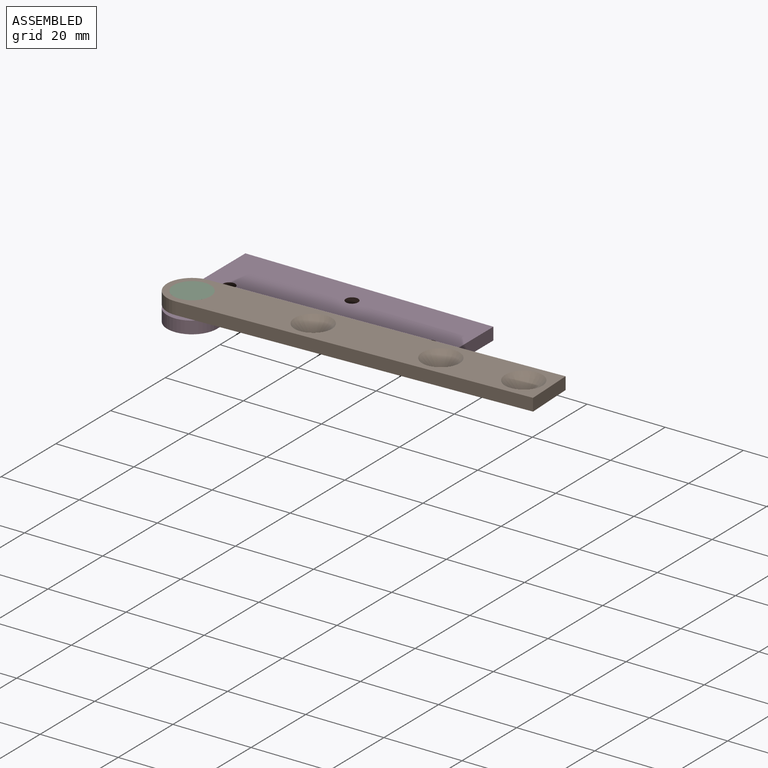
[diagram: assembled view]
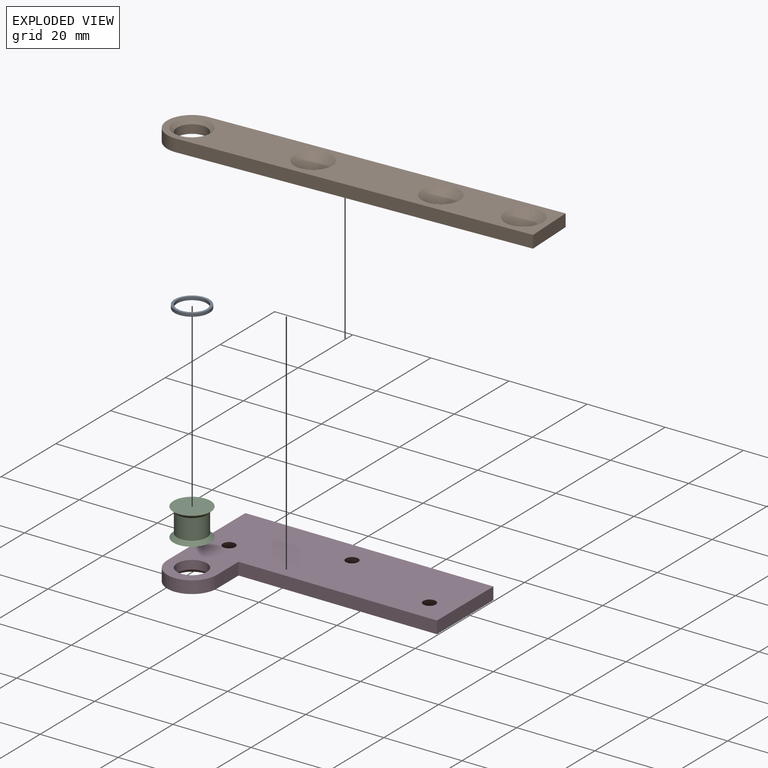
[diagram: exploded view]
GUIDED TOUR — MATED ASSEMBLY (Onshape document 0c7a436c01c78cbce4752ac5, AutoMate assembly 0c7a436c01c78cbce4752ac5_e4ef03f2356cd736030fd35d_e8e0e9ee72d660aeccb59630_default)

This assembly has 4 components, labeled P0..P3 below (a component is one placed occurrence of a part; the same part can appear more than once), held together by 6 mates. A mate is a constraint between two components; its type names the relative motion it leaves free:
  PLANAR — leaves sliding in the plane through the listed point (normal = the listed direction) and rotation about that normal free,
  REVOLUTE — leaves rotation about the listed axis free (a hinge).
Axis/direction vectors are unit vectors and 'through' points are millimeter coordinates, both in the assembly's world frame.

MATES
  1. REVOLUTE "Revolute 2": P1 <-> P0, axis (0.000, 0.000, -1.000) through (-55.55, -22.24, 11.81) mm
  2. REVOLUTE "Revolute 3": P2 <-> P1, axis (0.000, 0.000, 1.000) through (-55.55, -22.24, 14.98) mm
  3. PLANAR "Planar 2": P1 <-> P0, direction (0.000, 0.000, -1.000) through (-55.55, -22.24, 11.81) mm
  4. REVOLUTE "Revolute 1": P0 <-> P3, axis (0.000, 0.000, -1.000) through (-55.55, -22.24, 11.02) mm
  5. PLANAR "Planar 3": P1 <-> P2, direction (0.000, 0.000, 1.000) through (-14.18, -20.47, 14.98) mm
  6. PLANAR "Planar 1": P3 <-> P0, direction (0.000, 0.000, 1.000) through (-32.30, -5.33, 11.02) mm

ASSEMBLY ORDER
  1. P0 — the base component [order heuristic]
  2. P1 [order heuristic]
  3. P3 [order heuristic]
  4. P2 [order heuristic]
Order-tag legend:
  [order heuristic] — this assembly is geometrically interlocked (no collision-free removal order exists), so components are listed in mate-graph order; insertion feasibility is not verified.

Of the 4 components, 4 carry the full construction recipe — the FeatureScript program that regenerates the part's solid from scratch; the rest are supplied as boundary geometry only.
Each toured component is shown spotlighted twice — in the assembled view, then in the exploded view, where a leader line traces a displaced component back to its assembled socket (saturated green if recipe-attached, orange if geometry-only; every other component desaturated gray) — followed by its recipe or geometry summary and the mates that hold it.
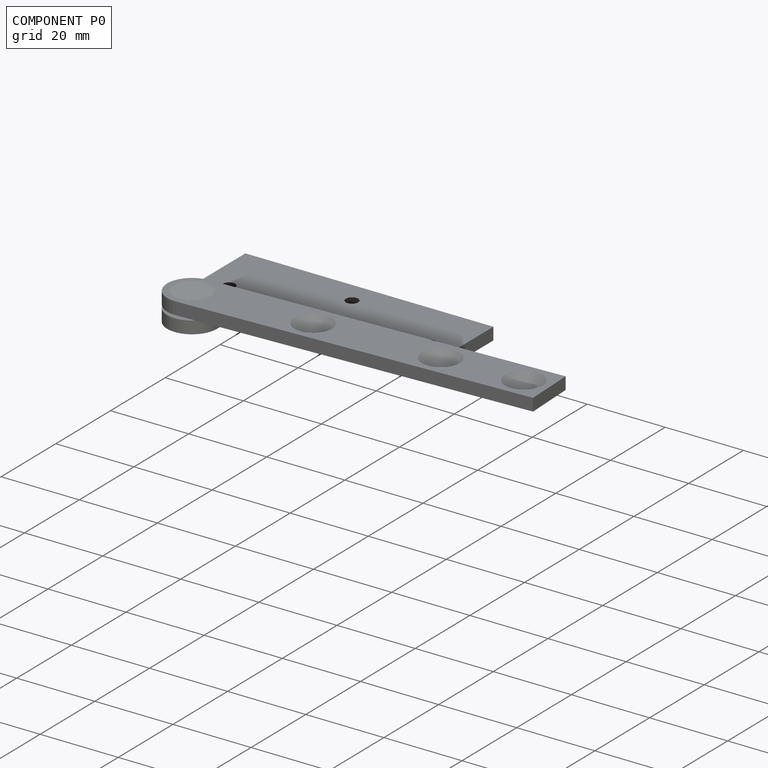
[diagram: component P0 — assembled]
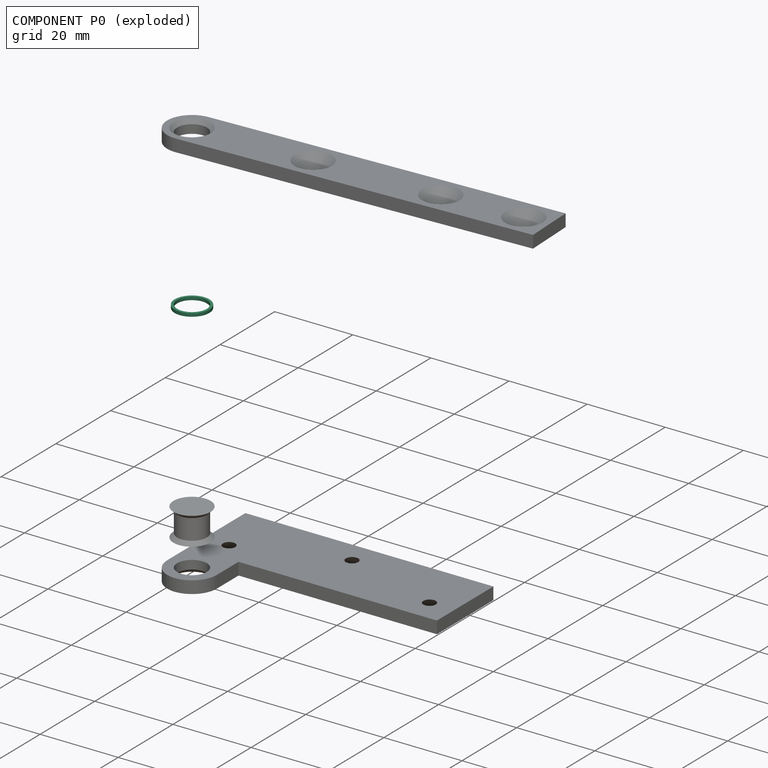
[diagram: component P0 — exploded]
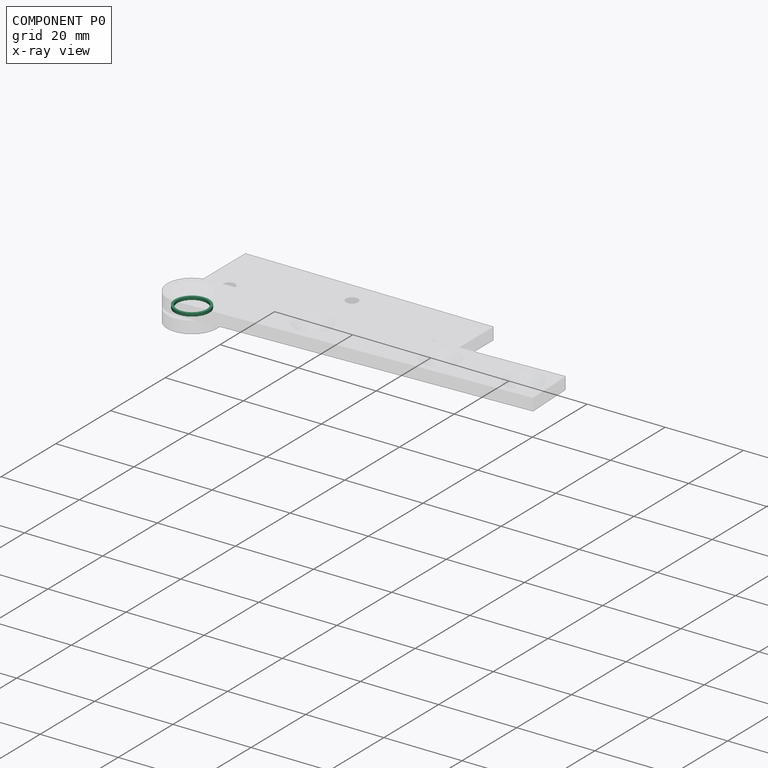
[diagram: component P0 — x-ray view]
COMPONENT P0 — recipe-attached (CADFS 00635773, mesh-verified: the recipe's output STEP matches this component's geometry to below the mesh-comparison resolution (tessellation chordal tolerance ~0.0189 mm)).
Held by: REVOLUTE mate "Revolute 2" to P1; PLANAR mate "Planar 2" to P1; REVOLUTE mate "Revolute 1" to P3; PLANAR mate "Planar 1" to P3.
Construction recipe (FeatureScript — the CAD program that rebuilds this solid; sketch coordinates are in the units given by the * unit suffixes, e.g. mm):

FeatureScript 1511;
import(path : "onshape/std/geometry.fs", version : "1511.0");
import(path : "onshape/std/common.fs", version : "1511.0");
const mm = millimeter;
const VERTEX = EntityType.VERTEX;
const EDGE = EntityType.EDGE;
const FACE = EntityType.FACE;
const BODY = EntityType.BODY;
function v(x, y){return vector(x, y);}
function OD(order){return orderDisambiguation(order);}
function OSD(set){return originalSetDisambiguation(set);}
function TD(topology){return topologyDisambiguation(topology);}
function TDD(query){return trueDependencyDisambiguation(query);}
function sQuery(a, b, c) {return sketchEntityQuery(a, b, c);}

annotation { "Feature Type Name" : "Feature", "Feature Type Description" : "" }
export const myFeature = defineFeature(function(context is Context, id is Id, definition is map)
    precondition{}
    {
        {
            var Q0;
            Q0=qCreatedBy(makeId("Front.planeOp"),FACE);
            var sketch = newSketch(context, id + "F0", { "sketchPlane" : qUnion([Q0])});
            skCircle(sketch, "E0", {"center": v(0, 0) * mm, "radius": 3.81 * mm});
            skCircle(sketch, "E1", {"center": v(0, 0) * mm, "radius": 4.45 * mm});
            skSolve(sketch);
        }
        {
            var Q0;
            Q0 = qSketchRegion(id + "F0", true);
            extrude(context, id + "F1", {"entities" : qUnion([Q0]), "depth" : 0.8 * mm, "offsetDistance" : 25.4 * mm});
        }
    });
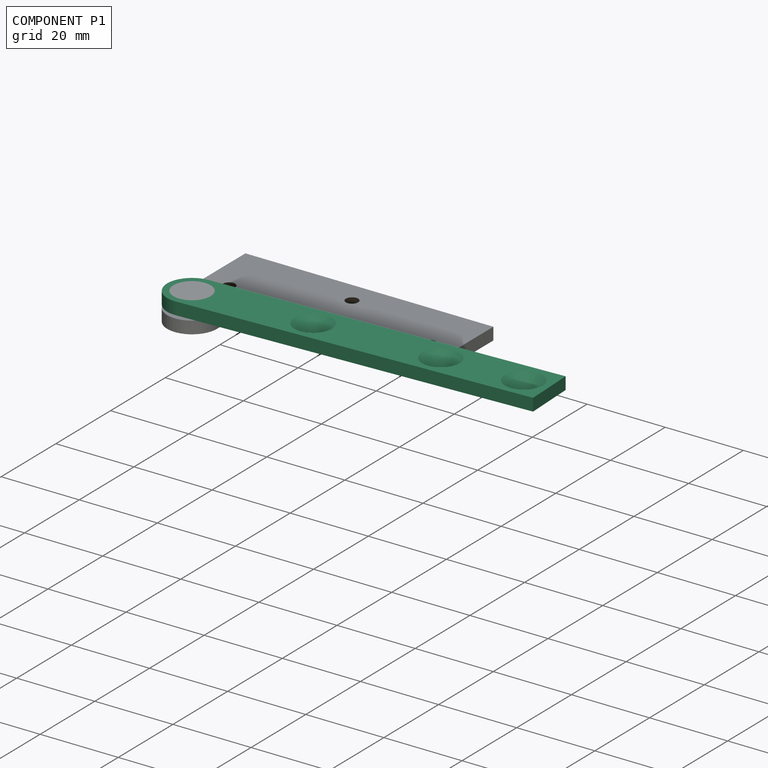
[diagram: component P1 — assembled]
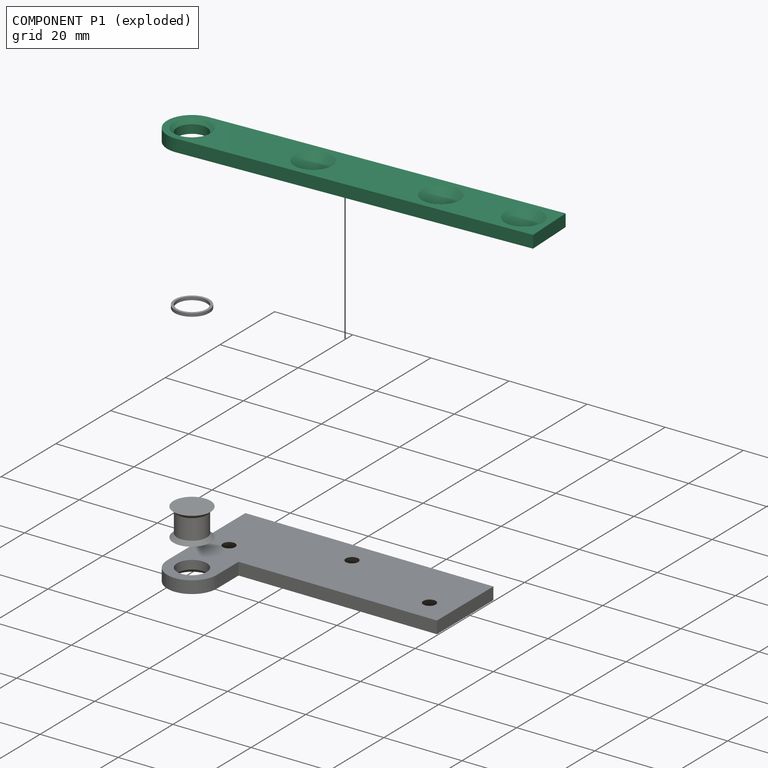
[diagram: component P1 — exploded]
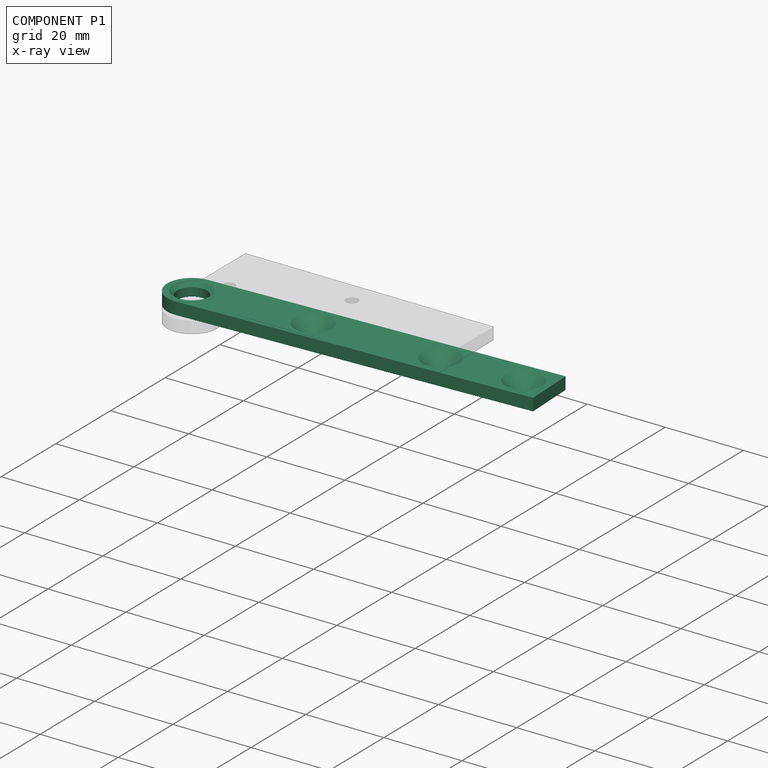
[diagram: component P1 — x-ray view]
COMPONENT P1 — recipe-attached (CADFS 00635774, mesh-verified: the recipe's output STEP matches this component's geometry to below the mesh-comparison resolution (tessellation chordal tolerance ~0.144 mm)).
Held by: REVOLUTE mate "Revolute 2" to P0; REVOLUTE mate "Revolute 3" to P2; PLANAR mate "Planar 2" to P0; PLANAR mate "Planar 3" to P2.
Construction recipe (FeatureScript — the CAD program that rebuilds this solid; sketch coordinates are in the units given by the * unit suffixes, e.g. mm):

FeatureScript 1511;
import(path : "onshape/std/geometry.fs", version : "1511.0");
import(path : "onshape/std/common.fs", version : "1511.0");
const mm = millimeter;
const VERTEX = EntityType.VERTEX;
const EDGE = EntityType.EDGE;
const FACE = EntityType.FACE;
const BODY = EntityType.BODY;
function v(x, y){return vector(x, y);}
function OD(order){return orderDisambiguation(order);}
function OSD(set){return originalSetDisambiguation(set);}
function TD(topology){return topologyDisambiguation(topology);}
function TDD(query){return trueDependencyDisambiguation(query);}
function sQuery(a, b, c) {return sketchEntityQuery(a, b, c);}

annotation { "Feature Type Name" : "Feature", "Feature Type Description" : "" }
export const myFeature = defineFeature(function(context is Context, id is Id, definition is map)
    precondition{}
    {
        {
            var Q0;
            Q0=qCreatedBy(makeId("Front.planeOp"),FACE);
            var sketch = newSketch(context, id + "F0", { "sketchPlane" : qUnion([Q0])});
            skLineSegment(sketch, "E0.top", {"start": v(6.35, 88.9) * mm, "end": v(-6.35, 88.9) * mm});
            skLineSegment(sketch, "E0.left", {"start": v(6.35, 0) * mm, "end": v(6.35, 88.9) * mm});
            skLineSegment(sketch, "E0.right", {"start": v(-6.35, 0) * mm, "end": v(-6.35, 88.9) * mm});
            skPoint(sketch, "E1", {"position": v(0, 82.55) * mm});
            skPoint(sketch, "E2", {"position": v(0, 61.91) * mm});
            skArc(sketch, "E3", {"start": v(-6.35, 0) * mm, "mid": v(0, -6.35) * mm, "end": v(6.35, 0) * mm});
            skPoint(sketch, "E4", {"position": v(0, 30.16) * mm});
            skSolve(sketch);
        }
        {
            var Q0;
            Q0 = qSketchRegion(id + "F0", true);
            extrude(context, id + "F1", {"entities" : qUnion([Q0]), "depth" : 3.17 * mm, "offsetDistance" : 25.4 * mm});
        }
        {
            var Q0;
            Q0=sQuery(id+"F0.wireOp",VERTEX,"E1");
            var Q1;
            Q1=sQuery(id+"F0.wireOp",VERTEX,"E2");
            var Q2;
            Q2=sQuery(id+"F0.wireOp",VERTEX,"E4");
            var Q3;
            Q3=makeQuery(id+"F1.opExtrude","SWEPT_BODY",BODY,{"disambiguationData":[OSD([sQuery(id+"F0.wireOp",EDGE,"E0.top"),sQuery(id+"F0.wireOp",EDGE,"E0.left"),sQuery(id+"F0.wireOp",EDGE,"E0.right"),sQuery(id+"F0.wireOp",EDGE,"E3")])]});
            hole(context, id + "F2", {"style" : HoleStyle.C_SINK, "endStyle" : HoleEndStyle.THROUGH, "oppositeDirection" : true, "holeDiameter" : 2.54 * mm, "cSinkDiameter" : 9.52 * mm, "cSinkAngle" : 90 * degree, "majorDiameter" : 6.35 * mm, "isTappedThrough" : true, "tappedDepth" : 12.7 * mm, "tapClearance" : 3, "locations" : qUnion([Q0, Q1, Q2]), "scope" : qUnion([Q3])});
        }
        {
            var Q0;
            Q0=sQuery(id+"F0.wireOp",VERTEX,"E3.center");
            var Q1;
            Q1=makeQuery(id+"F1.opExtrude","SWEPT_BODY",BODY,{"disambiguationData":[OSD([sQuery(id+"F0.wireOp",EDGE,"E0.top"),sQuery(id+"F0.wireOp",EDGE,"E0.left"),sQuery(id+"F0.wireOp",EDGE,"E0.right"),sQuery(id+"F0.wireOp",EDGE,"E3")])]});
            hole(context, id + "F3", {"style" : HoleStyle.C_SINK, "endStyle" : HoleEndStyle.THROUGH, "oppositeDirection" : true, "holeDiameter" : 7.62 * mm, "cSinkDiameter" : 9.52 * mm, "cSinkAngle" : 90 * degree, "majorDiameter" : 6.35 * mm, "isTappedThrough" : true, "tappedDepth" : 12.7 * mm, "tapClearance" : 3, "locations" : qUnion([Q0]), "scope" : qUnion([Q1])});
        }
    });
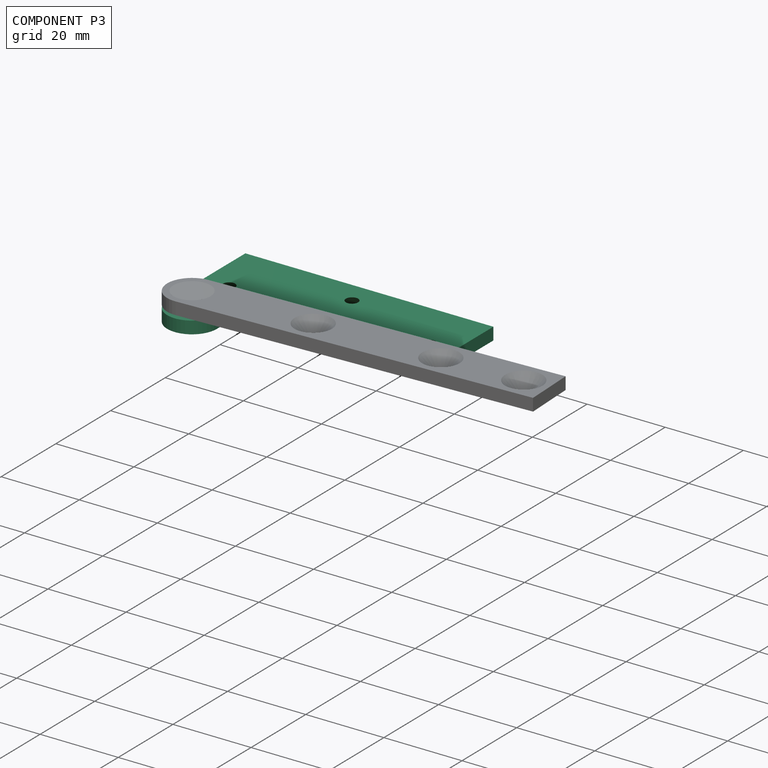
[diagram: component P3 — assembled]
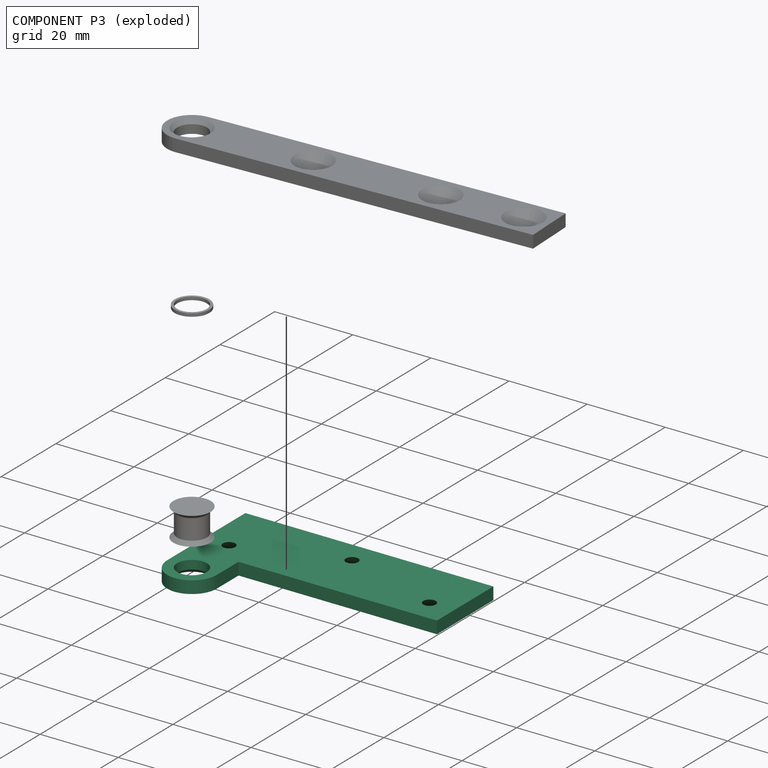
[diagram: component P3 — exploded]
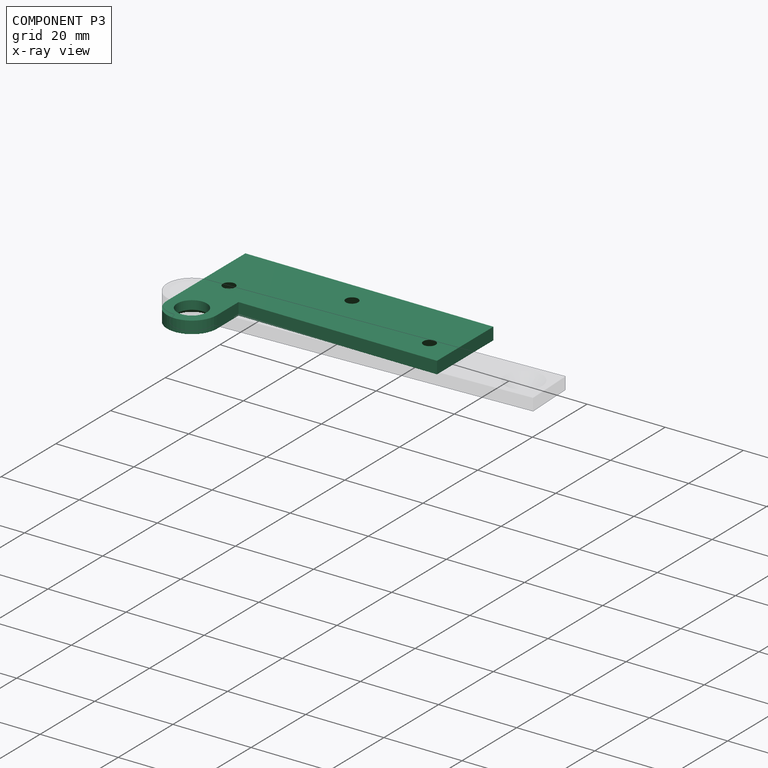
[diagram: component P3 — x-ray view]
COMPONENT P3 — recipe-attached (CADFS 00635772, mesh-verified: the recipe's output STEP matches this component's geometry to below the mesh-comparison resolution (tessellation chordal tolerance ~0.109 mm)).
Held by: REVOLUTE mate "Revolute 1" to P0; PLANAR mate "Planar 1" to P0.
Construction recipe (FeatureScript — the CAD program that rebuilds this solid; sketch coordinates are in the units given by the * unit suffixes, e.g. mm):

FeatureScript 1511;
import(path : "onshape/std/geometry.fs", version : "1511.0");
import(path : "onshape/std/common.fs", version : "1511.0");
const mm = millimeter;
const VERTEX = EntityType.VERTEX;
const EDGE = EntityType.EDGE;
const FACE = EntityType.FACE;
const BODY = EntityType.BODY;
function v(x, y){return vector(x, y);}
function OD(order){return orderDisambiguation(order);}
function OSD(set){return originalSetDisambiguation(set);}
function TD(topology){return topologyDisambiguation(topology);}
function TDD(query){return trueDependencyDisambiguation(query);}
function sQuery(a, b, c) {return sketchEntityQuery(a, b, c);}

annotation { "Feature Type Name" : "Feature", "Feature Type Description" : "" }
export const myFeature = defineFeature(function(context is Context, id is Id, definition is map)
    precondition{}
    {
        {
            var Q0;
            Q0=qCreatedBy(makeId("Top.planeOp"),FACE);
            var sketch = newSketch(context, id + "F0", { "sketchPlane" : qUnion([Q0])});
            skLineSegment(sketch, "E0.bottom", {"start": v(31.75, 10.32) * mm, "end": v(-31.75, 10.32) * mm});
            skLineSegment(sketch, "E0.top", {"start": v(31.75, -10.32) * mm, "end": v(-19.05, -10.32) * mm});
            skLineSegment(sketch, "E0.left", {"start": v(31.75, 10.32) * mm, "end": v(31.75, -10.32) * mm});
            skPoint(sketch, "E0.middle", {"position": v(0, 0) * mm});
            skArc(sketch, "E1", {"start": v(-31.75, -18.26) * mm, "mid": v(-25.4, -24.6) * mm, "end": v(-19.05, -18.26) * mm});
            skLineSegment(sketch, "E2", {"start": v(-19.05, -18.26) * mm, "end": v(-19.05, -10.32) * mm});
            skLineSegment(sketch, "E3", {"start": v(-31.75, 10.32) * mm, "end": v(-31.75, -18.26) * mm});
            skPoint(sketch, "E4", {"position": v(25.4, -3.97) * mm});
            skPoint(sketch, "E5", {"position": v(0, 3.97) * mm});
            skPoint(sketch, "E6", {"position": v(-25.4, -4.72) * mm});
            skSolve(sketch);
        }
        {
            var Q0;
            Q0=makeQuery(id+"F0.imprint","IMPRINT",FACE,{"disambiguationData":[TD([[makeQuery(id+"F0.imprint","IMPRINT",EDGE,{"derivedFrom":sQuery(id+"F0.wireOp",EDGE,"E0.bottom")}),1.0]])]});
            extrude(context, id + "F1", {"entities" : qUnion([Q0]), "depth" : 3.17 * mm, "offsetDistance" : 25.4 * mm});
        }
        {
            var Q0;
            Q0=sQuery(id+"F0.wireOp",VERTEX,"E4");
            var Q1;
            Q1=sQuery(id+"F0.wireOp",VERTEX,"E5");
            var Q2;
            Q2=sQuery(id+"F0.wireOp",VERTEX,"E6");
            var Q3;
            Q3=makeQuery(id+"F1.opExtrude","SWEPT_BODY",BODY,{"disambiguationData":[OSD([sQuery(id+"F0.wireOp",EDGE,"E0.bottom"),sQuery(id+"F0.wireOp",EDGE,"E0.top"),sQuery(id+"F0.wireOp",EDGE,"E0.left"),sQuery(id+"F0.wireOp",EDGE,"E1"),sQuery(id+"F0.wireOp",EDGE,"E2"),sQuery(id+"F0.wireOp",EDGE,"E3")])]});
            hole(context, id + "F2", {"style" : HoleStyle.C_SINK, "endStyle" : HoleEndStyle.THROUGH, "oppositeDirection" : true, "holeDiameter" : 2.54 * mm, "cSinkDiameter" : 9.52 * mm, "cSinkAngle" : 90 * degree, "majorDiameter" : 6.35 * mm, "isTappedThrough" : true, "tappedDepth" : 12.7 * mm, "tapClearance" : 3, "locations" : qUnion([Q0, Q1, Q2]), "scope" : qUnion([Q3])});
        }
        {
            var Q0;
            Q0=sQuery(id+"F0.wireOp",VERTEX,"E1.center");
            var Q1;
            Q1=makeQuery(id+"F1.opExtrude","SWEPT_BODY",BODY,{"disambiguationData":[OSD([sQuery(id+"F0.wireOp",EDGE,"E0.bottom"),sQuery(id+"F0.wireOp",EDGE,"E0.top"),sQuery(id+"F0.wireOp",EDGE,"E0.left"),sQuery(id+"F0.wireOp",EDGE,"E1"),sQuery(id+"F0.wireOp",EDGE,"E2"),sQuery(id+"F0.wireOp",EDGE,"E3")])]});
            hole(context, id + "F3", {"style" : HoleStyle.C_SINK, "endStyle" : HoleEndStyle.THROUGH, "oppositeDirection" : true, "holeDiameter" : 7.62 * mm, "cSinkDiameter" : 9.52 * mm, "cSinkAngle" : 90 * degree, "majorDiameter" : 6.35 * mm, "isTappedThrough" : true, "tappedDepth" : 12.7 * mm, "tapClearance" : 3, "locations" : qUnion([Q0]), "scope" : qUnion([Q1])});
        }
    });
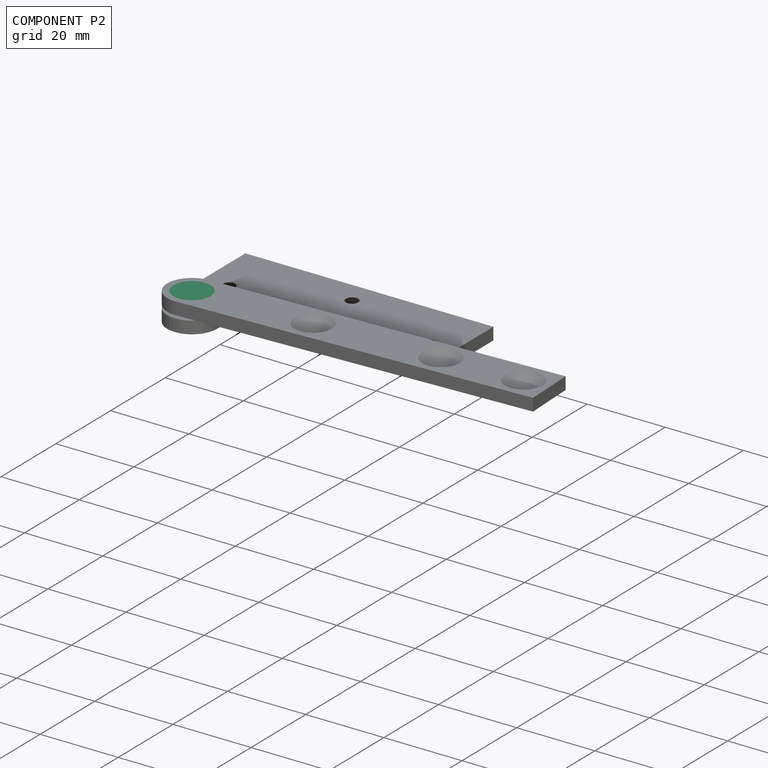
[diagram: component P2 — assembled]
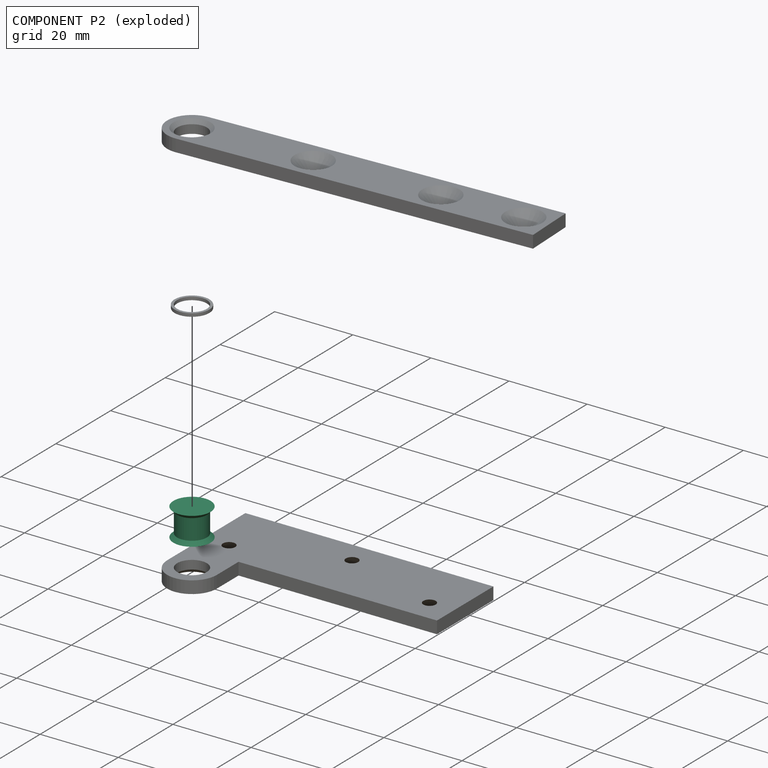
[diagram: component P2 — exploded]
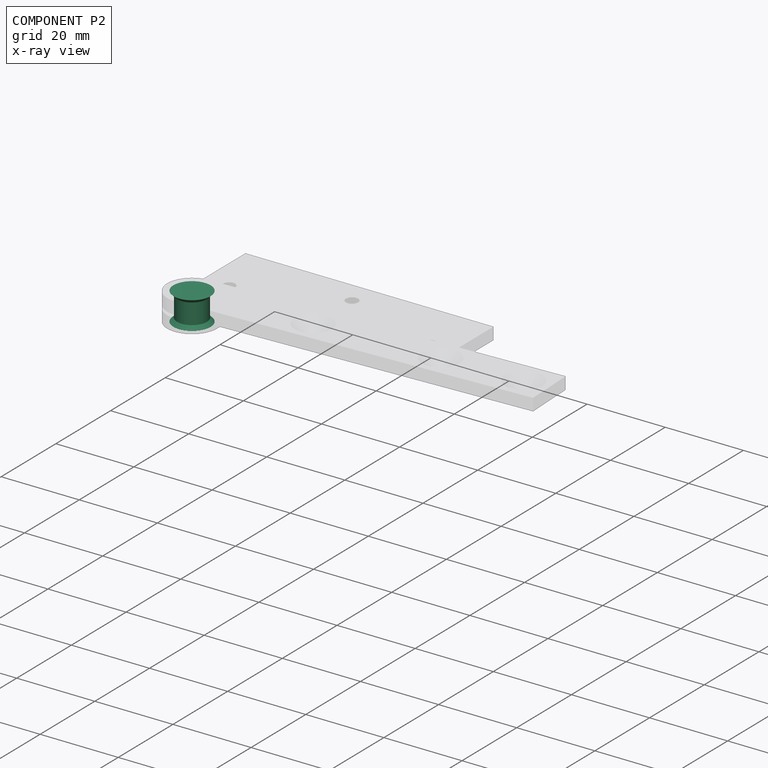
[diagram: component P2 — x-ray view]
COMPONENT P2 — recipe-attached (CADFS 00635775, mesh-verified: the recipe's output STEP matches this component's geometry to below the mesh-comparison resolution (tessellation chordal tolerance ~0.0229 mm)).
Held by: REVOLUTE mate "Revolute 3" to P1; PLANAR mate "Planar 3" to P1.
Construction recipe (FeatureScript — the CAD program that rebuilds this solid; sketch coordinates are in the units given by the * unit suffixes, e.g. mm):

FeatureScript 1511;
import(path : "onshape/std/geometry.fs", version : "1511.0");
import(path : "onshape/std/common.fs", version : "1511.0");
const mm = millimeter;
const VERTEX = EntityType.VERTEX;
const EDGE = EntityType.EDGE;
const FACE = EntityType.FACE;
const BODY = EntityType.BODY;
function v(x, y){return vector(x, y);}
function OD(order){return orderDisambiguation(order);}
function OSD(set){return originalSetDisambiguation(set);}
function TD(topology){return topologyDisambiguation(topology);}
function TDD(query){return trueDependencyDisambiguation(query);}
function sQuery(a, b, c) {return sketchEntityQuery(a, b, c);}

annotation { "Feature Type Name" : "Feature", "Feature Type Description" : "" }
export const myFeature = defineFeature(function(context is Context, id is Id, definition is map)
    precondition{}
    {
        {
            var Q0;
            Q0=qCreatedBy(makeId("Right.planeOp"),FACE);
            var sketch = newSketch(context, id + "F0", { "sketchPlane" : qUnion([Q0])});
            skLineSegment(sketch, "E0", {"start": v(0, 0) * mm, "end": v(-4.76, 0) * mm});
            skLineSegment(sketch, "E1", {"start": v(-4.76, 0) * mm, "end": v(-3.81, -0.95) * mm});
            skLineSegment(sketch, "E2", {"start": v(-3.81, -0.95) * mm, "end": v(-3.8, -6.2) * mm});
            skLineSegment(sketch, "E3", {"start": v(-3.81, -6.2) * mm, "end": v(-4.76, -7.14) * mm});
            skLineSegment(sketch, "E4", {"start": v(-4.76, -7.14) * mm, "end": v(0, -7.14) * mm});
            skLineSegment(sketch, "E5", {"start": v(0, 0) * mm, "end": v(0, -7.14) * mm});
            skSolve(sketch);
        }
        {
            var Q0;
            Q0=makeQuery(id+"F0.imprint","IMPRINT",FACE,{"disambiguationData":[TD([[makeQuery(id+"F0.imprint","IMPRINT",EDGE,{"derivedFrom":sQuery(id+"F0.wireOp",EDGE,"E0")}),1.0]])]});
            var Q1;
            Q1=sQuery(id+"F0.wireOp",EDGE,"E5");
            revolve(context, id + "F1", {"entities" : qUnion([Q0]), "axis" : qUnion([Q1]), "revolveType" : RevolveType.FULL});
        }
    });
PROVENANCE & LICENSES
Assembly (occurrences, transforms, mates, per-part STEP geometry): AutoMate dataset, Zenodo record 7776208, CC0.
Construction recipes: CADFS (HuggingFace VladPyatov/CADFS, CC-BY-4.0, layered over the ABC dataset), FeatureScript reconstruction programs keyed by ABC model id.
Join: ABC meta listings map ABC model id -> Onshape documentId; within a shared document, parts are matched by geometric signature (bounding-box dims + volume at 0.1% relative tolerance, exact B-rep face/solid counts).
Verification: 4 of this assembly's 4 components carry a recipe attachment, and every attachment is mesh-verified: the CADFS STEP and the AutoMate member STEP were compared as meshes in their shared local frame (symmetric sampled-point-to-mesh distance); worst across the 4 attachments: below the mesh-comparison resolution (tessellation chordal tolerance ~0.144 mm) on a 96 mm part.
Renders: orthographic iso camera (az 35 / el 25); the floor grid conveys scale (grid pitch printed in each image; no ruler). In the exploded view each component is displaced by its stored offset vector: the offsets alone carry the explosion direction (mate normal/axis signs are not orientation cues and do not encode it), and separation distances are assigned per mate-chain, not proportionally to assembly-order depth.
